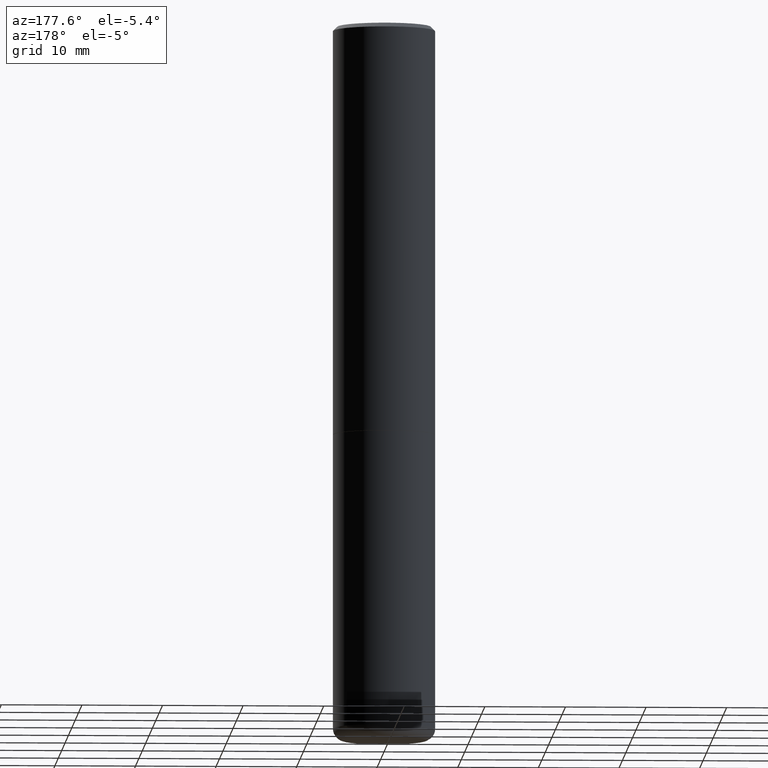
[diagram: clean part render]
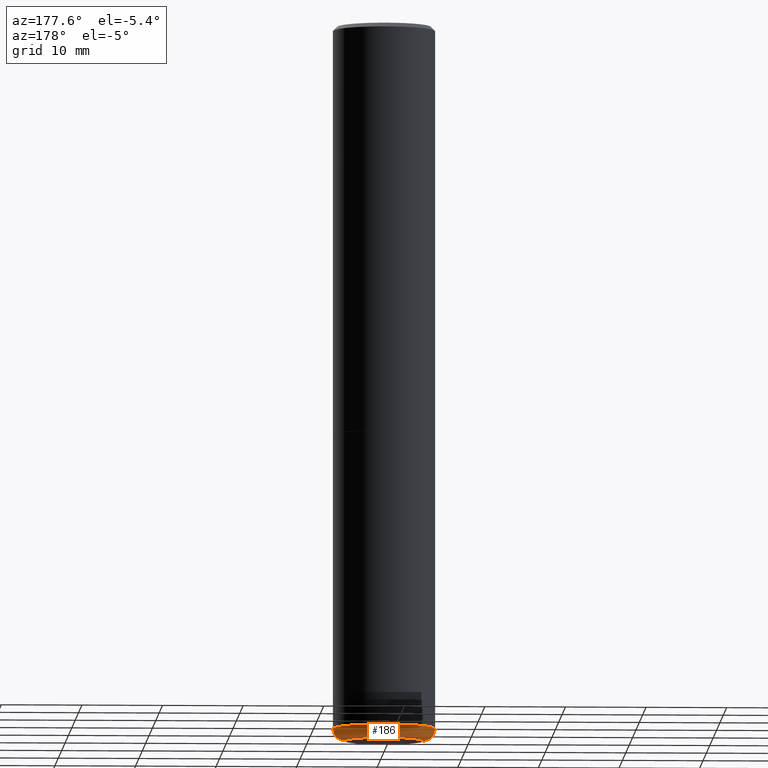
[diagram: same view with one face highlighted and labeled with its STEP entity id]
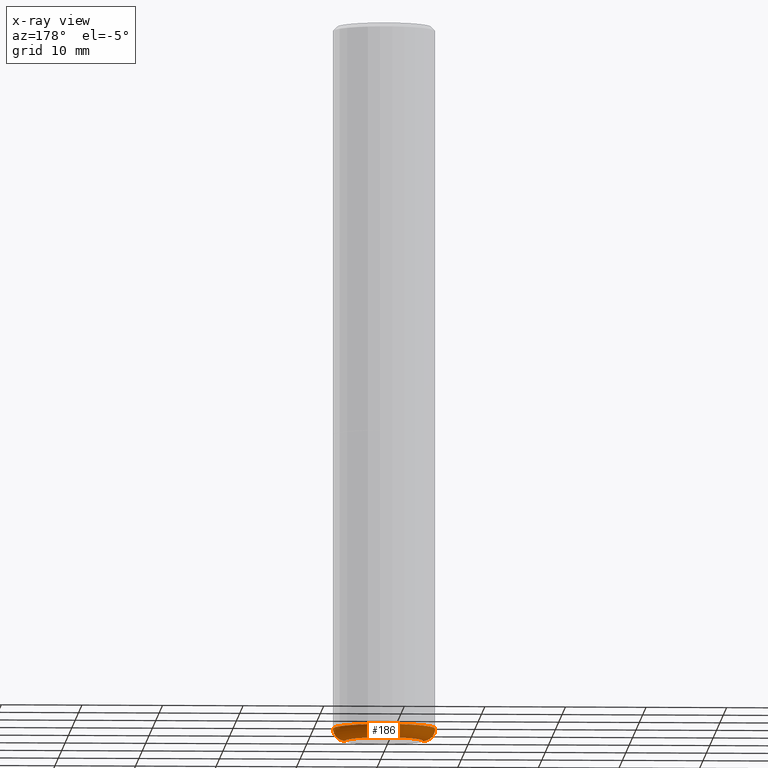
[diagram: x-ray of the same camera — body ghosted, the highlighted face saturated]
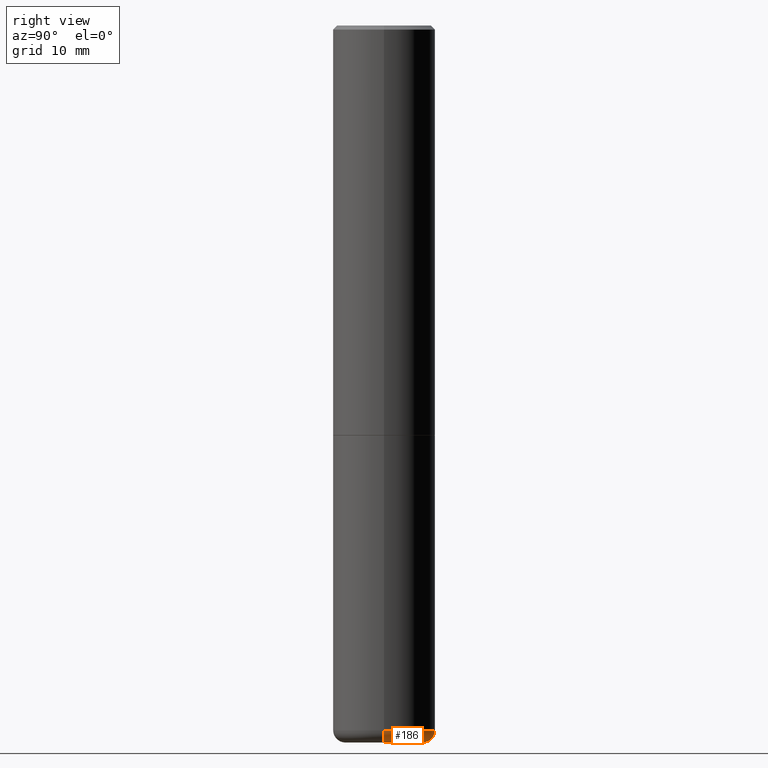
[diagram: same view with one face highlighted and labeled with its STEP entity id]
A machine part, auxiliary view. The second image highlights one B-rep face of the part: STEP entity #186.
The next image is the same camera in x-ray: the body ghosted, the highlighted face saturated — about 0% of this face is hidden behind the body in this view.
A second angle (right view) of the same face is appended — the face is thin or edge-on in the first view.
In plain terms, the highlighted toroidal blend (fillet) surface has major radius 4.826 mm and minor (blend) radius 1.524 mm.
Its self-contained STEP definition (entity closure, byte-faithful):
#14 = CARTESIAN_POINT ( 'NONE',  ( -0.1899999999999999745, -1.066066460767623105E-14, -3.439999999999999947 ) ) ;
#21 = DIRECTION ( 'NONE',  ( -2.445468806185136597E-29, 3.491481338843145583E-15, 1.000000000000000000 ) ) ;
#26 = AXIS2_PLACEMENT_3D ( 'NONE', #280, #312, #76 ) ;
#28 = CARTESIAN_POINT ( 'NONE',  ( 8.412412693276869938E-29, -1.201069580562042103E-14, -3.439999999999999947 ) ) ;
#40 = VERTEX_POINT ( 'NONE', #300 ) ;
#65 = DIRECTION ( 'NONE',  ( 1.000000000000000000, -6.982962677686265133E-15, 4.883557194083112340E-29 ) ) ;
#74 = ORIENTED_EDGE ( 'NONE', *, *, #386, .F. ) ;
#76 = DIRECTION ( 'NONE',  ( 1.000000000000000000, -6.982962677686274599E-15, 0.000000000000000000 ) ) ;
#97 = AXIS2_PLACEMENT_3D ( 'NONE', #14, #339, #162 ) ;
#102 = VERTEX_POINT ( 'NONE', #297 ) ;
#110 = FACE_OUTER_BOUND ( 'NONE', #388, .T. ) ;
#112 = DIRECTION ( 'NONE',  ( -2.445468806185136597E-29, 3.491481338843145583E-15, 1.000000000000000000 ) ) ;
#135 = TOROIDAL_SURFACE ( 'NONE', #285, 0.1899999999999999745, 0.05999999999999995615 ) ;
#136 = DIRECTION ( 'NONE',  ( -2.445468806185136597E-29, 3.491481338843145583E-15, 1.000000000000000000 ) ) ;
#147 = CARTESIAN_POINT ( 'NONE',  ( 8.412412693276869938E-29, -1.201069580562042103E-14, -3.439999999999999947 ) ) ;
#149 = CIRCLE ( 'NONE', #26, 0.05999999999999994227 ) ;
#153 = DIRECTION ( 'NONE',  ( 1.000000000000000000, -6.982962677686273021E-15, 0.000000000000000000 ) ) ;
#156 = ORIENTED_EDGE ( 'NONE', *, *, #418, .F. ) ;
#162 = DIRECTION ( 'NONE',  ( -1.000000000000000000, 7.105427357600997914E-15, 0.000000000000000000 ) ) ;
#186 = ADVANCED_FACE ( 'NONE', ( #110 ), #135, .T. ) ;
#187 = CARTESIAN_POINT ( 'NONE',  ( 8.559140821647976968E-29, -1.222018468595100934E-14, -3.500000000000000000 ) ) ;
#202 = ORIENTED_EDGE ( 'NONE', *, *, #255, .T. ) ;
#213 = ORIENTED_EDGE ( 'NONE', *, *, #415, .T. ) ;
#254 = CIRCLE ( 'NONE', #97, 0.05999999999999994227 ) ;
#255 = EDGE_CURVE ( 'NONE', #292, #40, #307, .T. ) ;
#260 = CARTESIAN_POINT ( 'NONE',  ( -0.2499999999999999722, -1.023433896622016898E-14, -3.439999999999999947 ) ) ;
#280 = CARTESIAN_POINT ( 'NONE',  ( 0.1899999999999999745, -1.333745871438081265E-14, -3.439999999999999947 ) ) ;
#285 = AXIS2_PLACEMENT_3D ( 'NONE', #147, #136, #65 ) ;
#292 = VERTEX_POINT ( 'NONE', #305 ) ;
#297 = CARTESIAN_POINT ( 'NONE',  ( 0.2499999999999999722, -1.375643647504198770E-14, -3.439999999999999947 ) ) ;
#300 = CARTESIAN_POINT ( 'NONE',  ( -0.1899999999999999745, -1.055224622711349575E-14, -3.500000000000000000 ) ) ;
#305 = CARTESIAN_POINT ( 'NONE',  ( 0.1899999999999999745, -1.354694759471140096E-14, -3.500000000000000000 ) ) ;
#307 = CIRCLE ( 'NONE', #343, 0.1899999999999999745 ) ;
#308 = CIRCLE ( 'NONE', #370, 0.2500000000000000000 ) ;
#312 = DIRECTION ( 'NONE',  ( -6.982962677686266711E-15, -1.000000000000000000, 3.491481338843145583E-15 ) ) ;
#339 = DIRECTION ( 'NONE',  ( 7.105427357601001859E-15, 1.000000000000000000, -3.491481338843145583E-15 ) ) ;
#343 = AXIS2_PLACEMENT_3D ( 'NONE', #187, #112, #153 ) ;
#370 = AXIS2_PLACEMENT_3D ( 'NONE', #28, #21, #412 ) ;
#386 = EDGE_CURVE ( 'NONE', #292, #102, #149, .T. ) ;
#388 = EDGE_LOOP ( 'NONE', ( #202, #213, #156, #74 ) ) ;
#396 = VERTEX_POINT ( 'NONE', #260 ) ;
#412 = DIRECTION ( 'NONE',  ( 1.000000000000000000, -6.982962677686270655E-15, 0.000000000000000000 ) ) ;
#415 = EDGE_CURVE ( 'NONE', #40, #396, #254, .T. ) ;
#418 = EDGE_CURVE ( 'NONE', #102, #396, #308, .T. ) ;